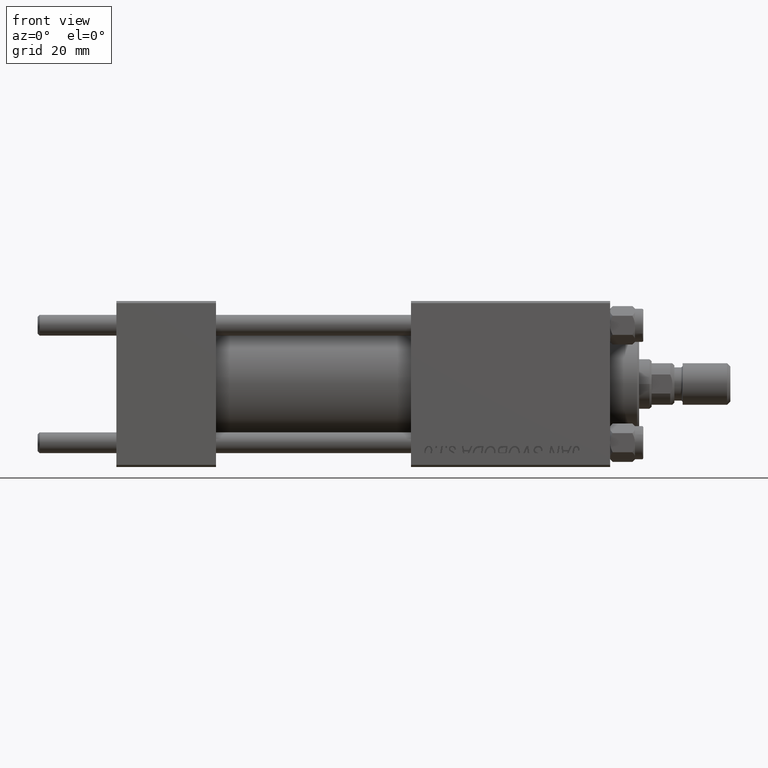
[diagram: clean part render]
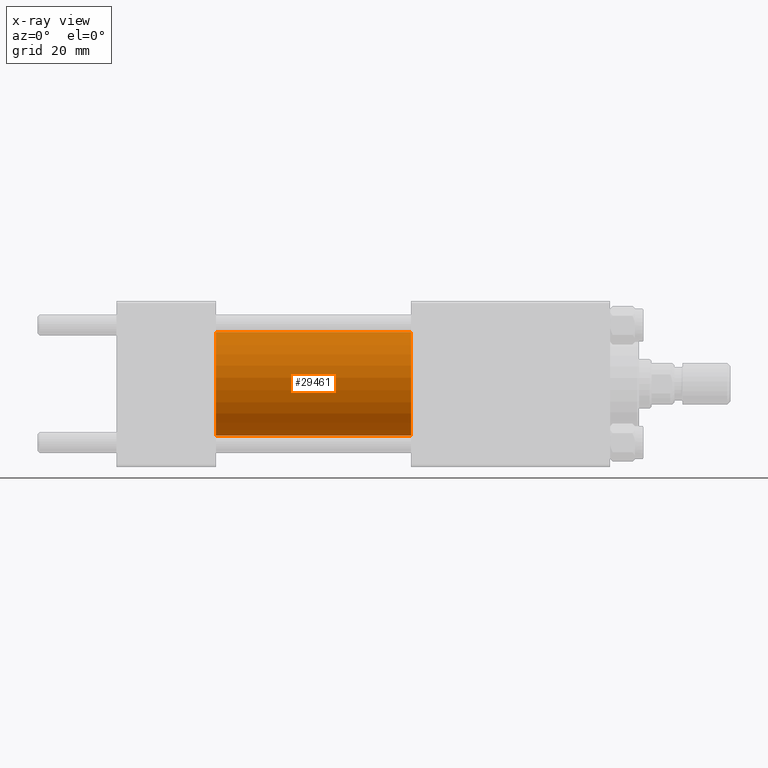
[diagram: x-ray — body ghosted, one internal face saturated and labeled with its STEP entity id]
A machine part, front view, then the same camera in x-ray: the body is ghosted and one INTERNAL B-rep face — a face not visible from any outside direction — is saturated and labeled: STEP entity #29461.
In plain terms, the highlighted cylindrical surface (partial cylindrical patch) has radius 12.5 mm, axis along (-1, -0, -0).
Its self-contained STEP definition (entity closure, byte-faithful):
#1240 = DIRECTION ( 'NONE',  ( 1.000000000000000000, 0.000000000000000000, 0.000000000000000000 ) ) ;
#3535 = DIRECTION ( 'NONE',  ( -1.000000000000000000, -0.000000000000000000, -0.000000000000000000 ) ) ;
#3783 = FACE_OUTER_BOUND ( 'NONE', #43716, .T. ) ;
#4152 = CARTESIAN_POINT ( 'NONE',  ( 71.00000000000001421, 0.000000000000000000, 12.49999999999999645 ) ) ;
#5551 = VERTEX_POINT ( 'NONE', #26278 ) ;
#6823 = EDGE_CURVE ( 'NONE', #28491, #41175, #44923, .T. ) ;
#7587 = EDGE_CURVE ( 'NONE', #5551, #41175, #17760, .T. ) ;
#9380 = DIRECTION ( 'NONE',  ( 0.000000000000000000, 0.000000000000000000, -1.000000000000000000 ) ) ;
#10319 = AXIS2_PLACEMENT_3D ( 'NONE', #50033, #1240, #9380 ) ;
#13044 = DIRECTION ( 'NONE',  ( -1.000000000000000000, -0.000000000000000000, -0.000000000000000000 ) ) ;
#13934 = DIRECTION ( 'NONE',  ( 0.000000000000000000, 0.000000000000000000, -1.000000000000000000 ) ) ;
#13947 = CARTESIAN_POINT ( 'NONE',  ( 71.00000000000001421, 1.530808498934191127E-15, -12.49999999999999645 ) ) ;
#14441 = DIRECTION ( 'NONE',  ( 1.000000000000000000, 0.000000000000000000, 0.000000000000000000 ) ) ;
#15285 = EDGE_CURVE ( 'NONE', #19621, #28491, #33358, .T. ) ;
#15719 = VECTOR ( 'NONE', #29432, 1000.000000000000000 ) ;
#16236 = CYLINDRICAL_SURFACE ( 'NONE', #27845, 12.49999999999999645 ) ;
#17760 = LINE ( 'NONE', #13947, #15719 ) ;
#19621 = VERTEX_POINT ( 'NONE', #4152 ) ;
#22240 = CARTESIAN_POINT ( 'NONE',  ( 24.00000000000000000, 1.530808498934191127E-15, -12.49999999999999645 ) ) ;
#22844 = CARTESIAN_POINT ( 'NONE',  ( 71.00000000000001421, 0.000000000000000000, 0.000000000000000000 ) ) ;
#23353 = DIRECTION ( 'NONE',  ( 0.000000000000000000, 0.000000000000000000, 1.000000000000000000 ) ) ;
#24036 = ORIENTED_EDGE ( 'NONE', *, *, #15285, .F. ) ;
#26278 = CARTESIAN_POINT ( 'NONE',  ( 71.00000000000001421, 1.530808498934191127E-15, -12.49999999999999645 ) ) ;
#26456 = CARTESIAN_POINT ( 'NONE',  ( 24.00000000000000000, 0.000000000000000000, 12.49999999999999645 ) ) ;
#27342 = ORIENTED_EDGE ( 'NONE', *, *, #7587, .T. ) ;
#27845 = AXIS2_PLACEMENT_3D ( 'NONE', #22844, #3535, #23353 ) ;
#28491 = VERTEX_POINT ( 'NONE', #26456 ) ;
#29059 = CARTESIAN_POINT ( 'NONE',  ( 71.00000000000001421, 0.000000000000000000, 12.49999999999999645 ) ) ;
#29432 = DIRECTION ( 'NONE',  ( -1.000000000000000000, -0.000000000000000000, -0.000000000000000000 ) ) ;
#29461 = ADVANCED_FACE ( 'NONE', ( #3783 ), #16236, .F. ) ;
#31397 = CIRCLE ( 'NONE', #10319, 12.49999999999999645 ) ;
#33358 = LINE ( 'NONE', #29059, #46644 ) ;
#41175 = VERTEX_POINT ( 'NONE', #22240 ) ;
#42018 = EDGE_CURVE ( 'NONE', #19621, #5551, #31397, .T. ) ;
#42480 = AXIS2_PLACEMENT_3D ( 'NONE', #48719, #14441, #13934 ) ;
#43716 = EDGE_LOOP ( 'NONE', ( #48644, #27342, #46773, #24036 ) ) ;
#44923 = CIRCLE ( 'NONE', #42480, 12.49999999999999645 ) ;
#46644 = VECTOR ( 'NONE', #13044, 1000.000000000000000 ) ;
#46773 = ORIENTED_EDGE ( 'NONE', *, *, #6823, .F. ) ;
#48644 = ORIENTED_EDGE ( 'NONE', *, *, #42018, .T. ) ;
#48719 = CARTESIAN_POINT ( 'NONE',  ( 24.00000000000000000, 0.000000000000000000, 0.000000000000000000 ) ) ;
#50033 = CARTESIAN_POINT ( 'NONE',  ( 71.00000000000001421, 0.000000000000000000, 0.000000000000000000 ) ) ;